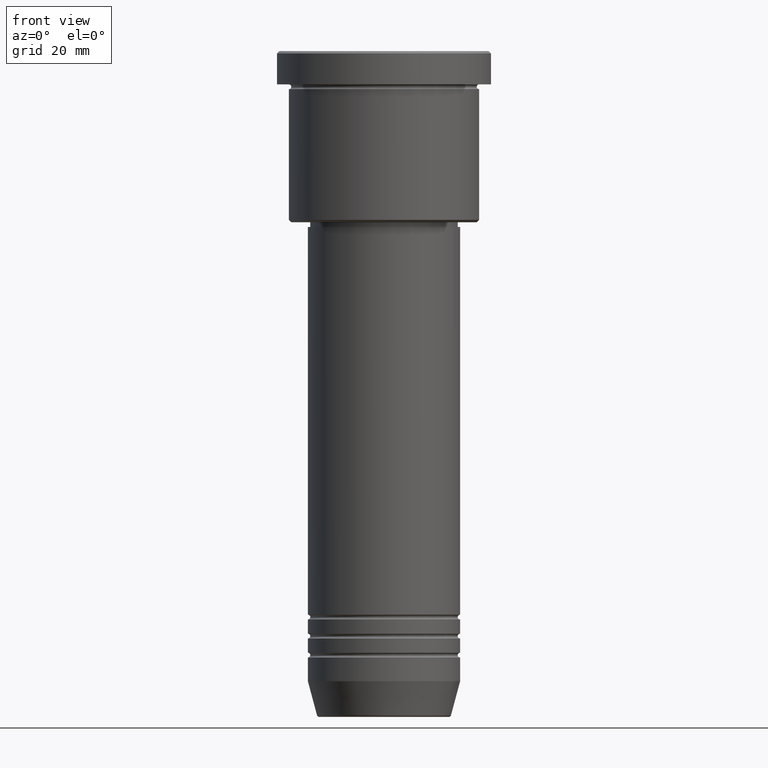
[diagram: clean part render]
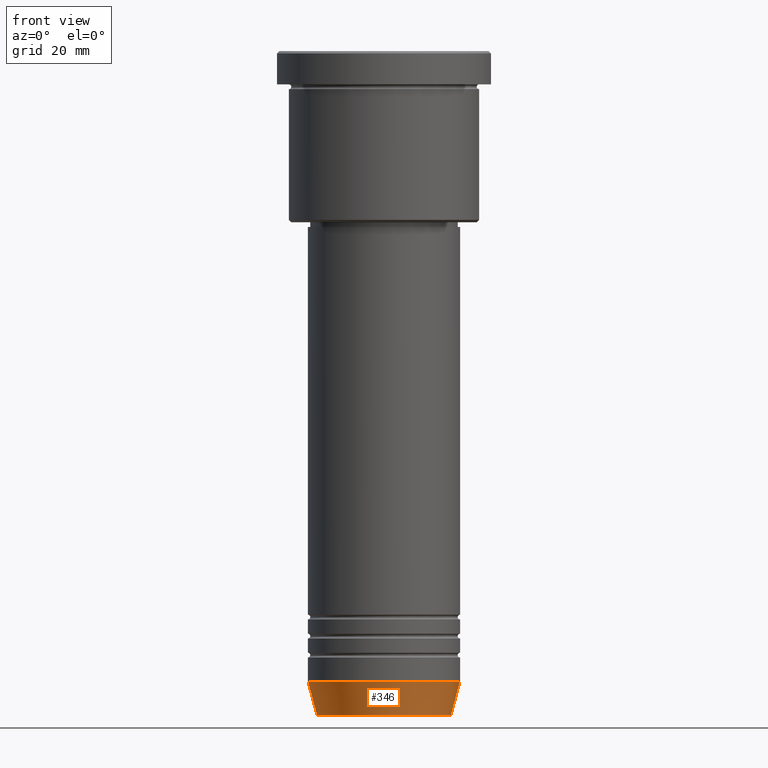
[diagram: same view with one face highlighted and labeled with its STEP entity id]
A machine part, front view. The second image highlights one B-rep face of the part: STEP entity #346.
In plain terms, the highlighted conical surface has half-angle 15 deg.
Its self-contained STEP definition (entity closure, byte-faithful):
#116 = DIRECTION ( 'NONE',  ( 1.000000000000000000, 0.000000000000000000, 0.000000000000000000 ) ) ;
#122 = ORIENTED_EDGE ( 'NONE', *, *, #1092, .T. ) ;
#149 = DIRECTION ( 'NONE',  ( -0.000000000000000000, -0.000000000000000000, 1.000000000000000000 ) ) ;
#158 = CARTESIAN_POINT ( 'NONE',  ( 0.000000000000000000, 0.000000000000000000, -139.6294095225512706 ) ) ;
#159 = EDGE_LOOP ( 'NONE', ( #243, #536, #122, #482 ) ) ;
#219 = EDGE_CURVE ( 'NONE', #690, #1111, #677, .T. ) ;
#243 = ORIENTED_EDGE ( 'NONE', *, *, #385, .F. ) ;
#252 = CARTESIAN_POINT ( 'NONE',  ( -16.00000000000000000, 1.959434878635765131E-15, -132.5000000000000000 ) ) ;
#258 = CARTESIAN_POINT ( 'NONE',  ( -14.08968047592163053, 1.842461544110201663E-15, -139.6294095225512706 ) ) ;
#346 = ADVANCED_FACE ( 'NONE', ( #500 ), #713, .T. ) ;
#385 = EDGE_CURVE ( 'NONE', #690, #571, #879, .T. ) ;
#405 = CARTESIAN_POINT ( 'NONE',  ( 0.000000000000000000, 0.000000000000000000, -132.5000000000000000 ) ) ;
#414 = VERTEX_POINT ( 'NONE', #980 ) ;
#482 = ORIENTED_EDGE ( 'NONE', *, *, #1143, .F. ) ;
#500 = FACE_OUTER_BOUND ( 'NONE', #159, .T. ) ;
#514 = DIRECTION ( 'NONE',  ( 1.000000000000000000, 0.000000000000000000, 0.000000000000000000 ) ) ;
#536 = ORIENTED_EDGE ( 'NONE', *, *, #219, .T. ) ;
#571 = VERTEX_POINT ( 'NONE', #1177 ) ;
#575 = DIRECTION ( 'NONE',  ( 0.2588190451025213501, 0.000000000000000000, 0.9659258262890680902 ) ) ;
#606 = AXIS2_PLACEMENT_3D ( 'NONE', #852, #766, #116 ) ;
#677 = CIRCLE ( 'NONE', #1096, 14.08968047592163053 ) ;
#690 = VERTEX_POINT ( 'NONE', #258 ) ;
#702 = DIRECTION ( 'NONE',  ( 1.000000000000000000, 0.000000000000000000, 0.000000000000000000 ) ) ;
#713 = CONICAL_SURFACE ( 'NONE', #868, 16.00000000000000000, 0.2617993877991500740 ) ;
#720 = CIRCLE ( 'NONE', #606, 16.00000000000000000 ) ;
#766 = DIRECTION ( 'NONE',  ( -0.000000000000000000, -0.000000000000000000, 1.000000000000000000 ) ) ;
#791 = DIRECTION ( 'NONE',  ( -0.2588190451025213501, 3.169619151431772337E-17, 0.9659258262890680902 ) ) ;
#852 = CARTESIAN_POINT ( 'NONE',  ( 0.000000000000000000, 0.000000000000000000, -132.5000000000000000 ) ) ;
#868 = AXIS2_PLACEMENT_3D ( 'NONE', #405, #987, #702 ) ;
#879 = LINE ( 'NONE', #252, #1064 ) ;
#980 = CARTESIAN_POINT ( 'NONE',  ( 16.00000000000000000, 0.000000000000000000, -132.5000000000000000 ) ) ;
#987 = DIRECTION ( 'NONE',  ( -0.000000000000000000, -0.000000000000000000, 1.000000000000000000 ) ) ;
#1053 = LINE ( 'NONE', #1123, #1183 ) ;
#1064 = VECTOR ( 'NONE', #791, 1000.000000000000000 ) ;
#1092 = EDGE_CURVE ( 'NONE', #1111, #414, #1053, .T. ) ;
#1096 = AXIS2_PLACEMENT_3D ( 'NONE', #158, #149, #514 ) ;
#1111 = VERTEX_POINT ( 'NONE', #1131 ) ;
#1123 = CARTESIAN_POINT ( 'NONE',  ( 16.00000000000000000, 0.000000000000000000, -132.5000000000000000 ) ) ;
#1131 = CARTESIAN_POINT ( 'NONE',  ( 14.08968047592163053, 0.000000000000000000, -139.6294095225512706 ) ) ;
#1143 = EDGE_CURVE ( 'NONE', #571, #414, #720, .T. ) ;
#1177 = CARTESIAN_POINT ( 'NONE',  ( -16.00000000000000000, 1.959434878635765131E-15, -132.5000000000000000 ) ) ;
#1183 = VECTOR ( 'NONE', #575, 1000.000000000000000 ) ;